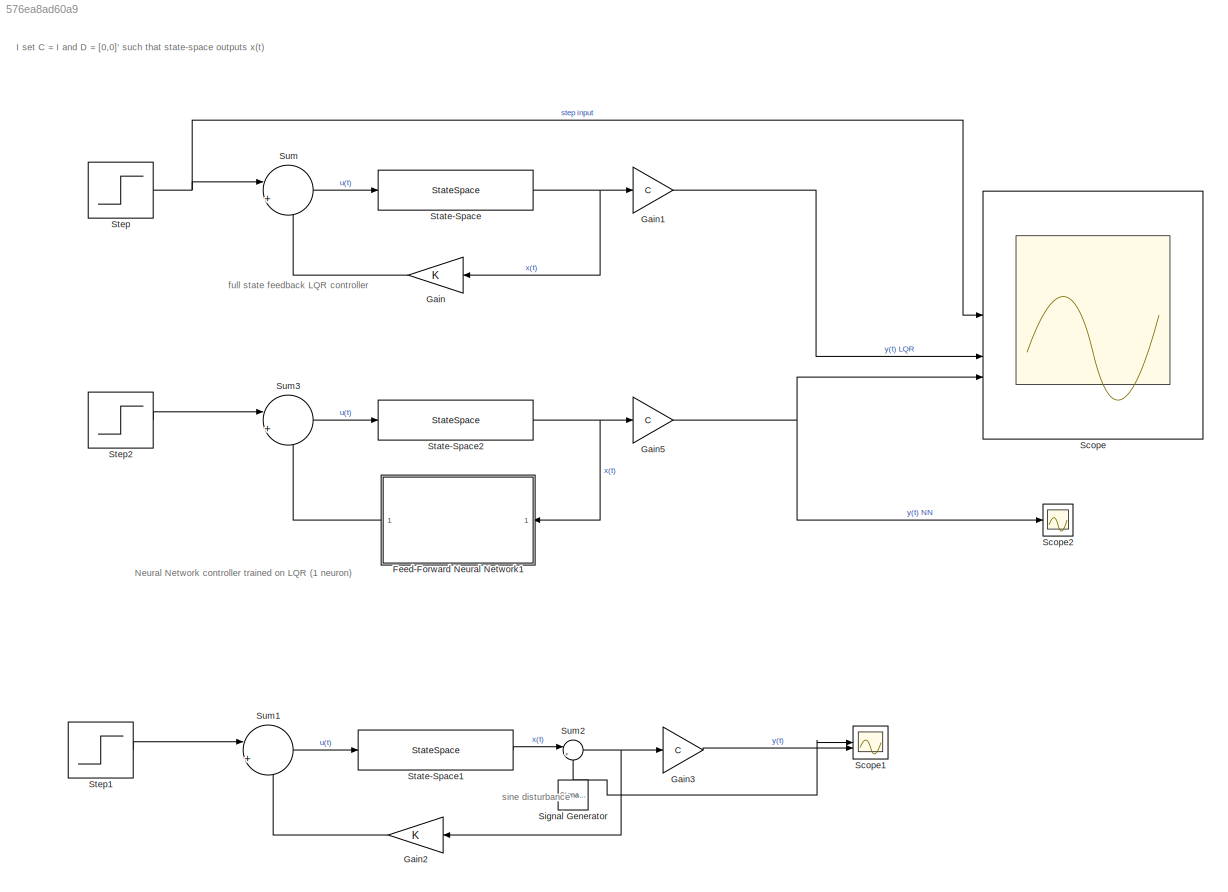
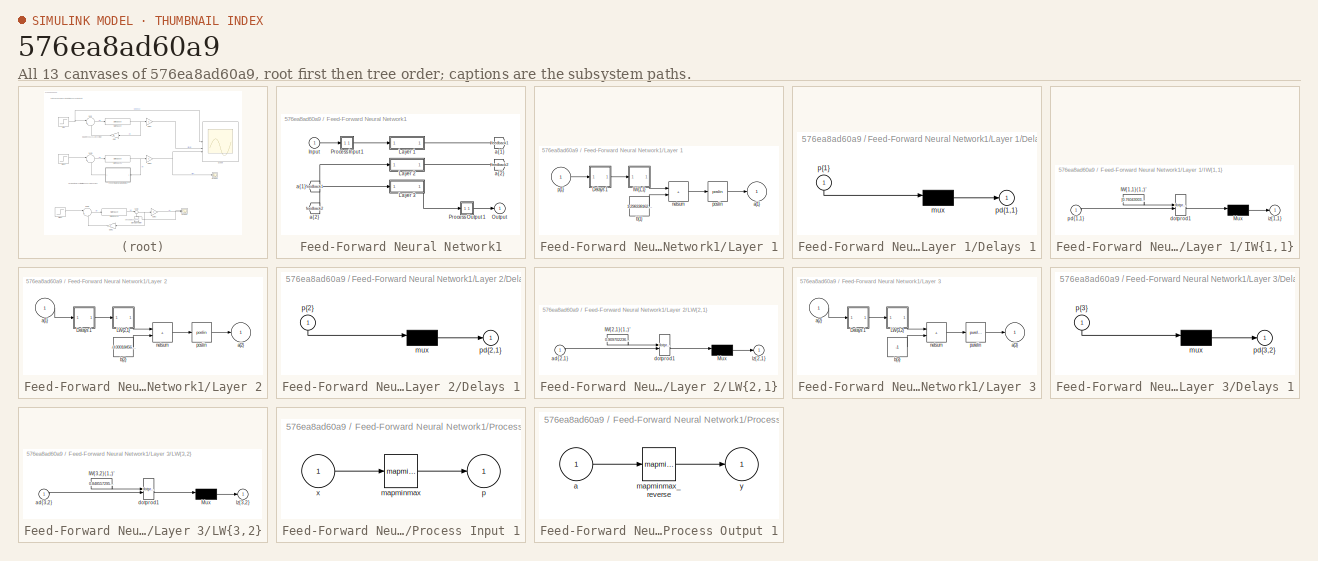
[diagram: thumbnail index - all 13 canvases of the model, root first then tree order]
MODEL slx_576ea8ad60a9
KIND model
CONFIG AbsTol = auto
CONFIG EnableMultiTasking = off
CONFIG FixedStep = auto
CONFIG MaxStep = auto
CONFIG MinStep = auto
CONFIG RelTol = 1e-3
CONFIG SampleTimeConstraint = Unconstrained
CONFIG SolverName = VariableStepAuto
CONFIG StartTime = 0.0
CONFIG StopTime = 10
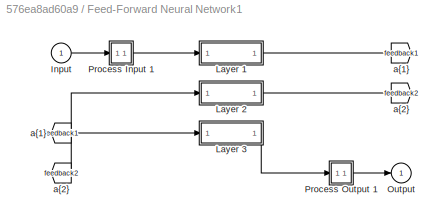
BLOCK [SubSystem] Feed-Forward Neural Network1
  NameLocation = top
BLOCK [From] Feed-Forward Neural Network1/ a{1} 
  GotoTag = feedback1
BLOCK [From] Feed-Forward Neural Network1/ a{2} 
  GotoTag = feedback2
BLOCK [Inport] Feed-Forward Neural Network1/Input
  PortDimensions = 2
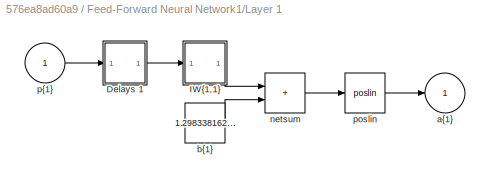
BLOCK [SubSystem] Feed-Forward Neural Network1/Layer 1
BLOCK [SubSystem] Feed-Forward Neural Network1/Layer 1/Delays 1
BLOCK [Mux] Feed-Forward Neural Network1/Layer 1/Delays 1/mux
  Inputs = 1
BLOCK [Outport] Feed-Forward Neural Network1/Layer 1/Delays 1/pd{1,1}
BLOCK [Inport] Feed-Forward Neural Network1/Layer 1/Delays 1/p{1}
  NameLocation = left
  PortDimensions = 2
BLOCK [SubSystem] Feed-Forward Neural Network1/Layer 1/IW{1,1}
BLOCK [Constant] Feed-Forward Neural Network1/Layer 1/IW{1,1}/IW{1,1}(1,:)'
  Value = [0.7604300398855599052438947182963602244853973388671875;0.537705237821036075018810151959769427776336669921875]
BLOCK [Mux] Feed-Forward Neural Network1/Layer 1/IW{1,1}/Mux
  Inputs = 1
BLOCK [Reference] Feed-Forward Neural Network1/Layer 1/IW{1,1}/dotprod1  REF=neural/Weight Functions/dotprod
  SourceBlock = neural/Weight Functions/dotprod
  SourceType = DOTPROD
BLOCK [Outport] Feed-Forward Neural Network1/Layer 1/IW{1,1}/iz{1,1}
BLOCK [Inport] Feed-Forward Neural Network1/Layer 1/IW{1,1}/pd{1,1}
  PortDimensions = 2
BLOCK [Outport] Feed-Forward Neural Network1/Layer 1/a{1}
  InitialOutput = 0
BLOCK [Constant] Feed-Forward Neural Network1/Layer 1/b{1}
  Value = 1.29833816245283717449865434900857508182525634765625
BLOCK [Sum] Feed-Forward Neural Network1/Layer 1/netsum
  IconShape = rectangular
  InputSameDT = on
  Inputs = 2
  OutDataTypeStr = Inherit: Same as first input
  SaturateOnIntegerOverflow = on
BLOCK [Reference] Feed-Forward Neural Network1/Layer 1/poslin  REF=neural/Transfer Functions/poslin
  SourceBlock = neural/Transfer Functions/poslin
  SourceType = POSLIN
BLOCK [Inport] Feed-Forward Neural Network1/Layer 1/p{1}
  PortDimensions = 2
BLOCK [SubSystem] Feed-Forward Neural Network1/Layer 2
BLOCK [SubSystem] Feed-Forward Neural Network1/Layer 2/Delays 1
BLOCK [Mux] Feed-Forward Neural Network1/Layer 2/Delays 1/mux
  Inputs = 1
BLOCK [Outport] Feed-Forward Neural Network1/Layer 2/Delays 1/pd{2,1}
BLOCK [Inport] Feed-Forward Neural Network1/Layer 2/Delays 1/p{2}
  NameLocation = left
  PortDimensions = 1
BLOCK [SubSystem] Feed-Forward Neural Network1/Layer 2/LW{2,1}
BLOCK [Constant] Feed-Forward Neural Network1/Layer 2/LW{2,1}/IW{2,1}(1,:)'
  Value = 0.909702236076758818938969852752052247524261474609375
BLOCK [Mux] Feed-Forward Neural Network1/Layer 2/LW{2,1}/Mux
  Inputs = 1
BLOCK [Inport] Feed-Forward Neural Network1/Layer 2/LW{2,1}/ad{2,1}
  PortDimensions = 1
BLOCK [Reference] Feed-Forward Neural Network1/Layer 2/LW{2,1}/dotprod1  REF=neural/Weight Functions/dotprod
  SourceBlock = neural/Weight Functions/dotprod
  SourceType = DOTPROD
BLOCK [Outport] Feed-Forward Neural Network1/Layer 2/LW{2,1}/lz{2,1}
BLOCK [Inport] Feed-Forward Neural Network1/Layer 2/a{1} 
  PortDimensions = 1
BLOCK [Outport] Feed-Forward Neural Network1/Layer 2/a{2}
  InitialOutput = 0
BLOCK [Constant] Feed-Forward Neural Network1/Layer 2/b{2}
  Value = -0.00018456470732128269786852248213193661285913549363613128662109375
BLOCK [Sum] Feed-Forward Neural Network1/Layer 2/netsum
  IconShape = rectangular
  InputSameDT = on
  Inputs = 2
  OutDataTypeStr = Inherit: Same as first input
  SaturateOnIntegerOverflow = on
BLOCK [Reference] Feed-Forward Neural Network1/Layer 2/poslin  REF=neural/Transfer Functions/poslin
  SourceBlock = neural/Transfer Functions/poslin
  SourceType = POSLIN
BLOCK [SubSystem] Feed-Forward Neural Network1/Layer 3
BLOCK [SubSystem] Feed-Forward Neural Network1/Layer 3/Delays 1
BLOCK [Mux] Feed-Forward Neural Network1/Layer 3/Delays 1/mux
  Inputs = 1
BLOCK [Outport] Feed-Forward Neural Network1/Layer 3/Delays 1/pd{3,2}
BLOCK [Inport] Feed-Forward Neural Network1/Layer 3/Delays 1/p{3}
  NameLocation = left
  PortDimensions = 1
BLOCK [SubSystem] Feed-Forward Neural Network1/Layer 3/LW{3,2}
BLOCK [Constant] Feed-Forward Neural Network1/Layer 3/LW{3,2}/IW{3,2}(1,:)'
  Value = 0.8485572951164546129376731187221594154834747314453125
BLOCK [Mux] Feed-Forward Neural Network1/Layer 3/LW{3,2}/Mux
  Inputs = 1
BLOCK [Inport] Feed-Forward Neural Network1/Layer 3/LW{3,2}/ad{3,2}
  PortDimensions = 1
BLOCK [Reference] Feed-Forward Neural Network1/Layer 3/LW{3,2}/dotprod1  REF=neural/Weight Functions/dotprod
  SourceBlock = neural/Weight Functions/dotprod
  SourceType = DOTPROD
BLOCK [Outport] Feed-Forward Neural Network1/Layer 3/LW{3,2}/lz{3,2}
BLOCK [Inport] Feed-Forward Neural Network1/Layer 3/a{2} 
  PortDimensions = 1
BLOCK [Outport] Feed-Forward Neural Network1/Layer 3/a{3}
  InitialOutput = 0
BLOCK [Constant] Feed-Forward Neural Network1/Layer 3/b{3}
  Value = -1
BLOCK [Sum] Feed-Forward Neural Network1/Layer 3/netsum
  IconShape = rectangular
  InputSameDT = on
  Inputs = 2
  OutDataTypeStr = Inherit: Same as first input
  SaturateOnIntegerOverflow = on
BLOCK [Reference] Feed-Forward Neural Network1/Layer 3/purelin  REF=neural/Transfer Functions/purelin
  SourceBlock = neural/Transfer Functions/purelin
  SourceType = PURELIN
BLOCK [Outport] Feed-Forward Neural Network1/Output
  InitialOutput = 0
BLOCK [SubSystem] Feed-Forward Neural Network1/Process Input 1
BLOCK [Reference] Feed-Forward Neural Network1/Process Input 1/mapminmax  REF=neural/Processing Functions/mapminmax
  SourceBlock = neural/Processing Functions/mapminmax
  SourceType = MAPMINMAX Preprocess
BLOCK [Outport] Feed-Forward Neural Network1/Process Input 1/p
  PortDimensions = 2
BLOCK [Inport] Feed-Forward Neural Network1/Process Input 1/x
  PortDimensions = 2
BLOCK [SubSystem] Feed-Forward Neural Network1/Process Output 1
BLOCK [Inport] Feed-Forward Neural Network1/Process Output 1/a
  PortDimensions = 1
BLOCK [Reference] Feed-Forward Neural Network1/Process Output 1/mapminmax_reverse  REF=neural/Processing Functions/mapminmax_reverse
  SourceBlock = neural/Processing Functions/mapminmax_reverse
  SourceType = MAPMINMAX Reverse Process
BLOCK [Outport] Feed-Forward Neural Network1/Process Output 1/y
  PortDimensions = 1
BLOCK [Goto] Feed-Forward Neural Network1/a{1}
  GotoTag = feedback1
BLOCK [Goto] Feed-Forward Neural Network1/a{2}
  GotoTag = feedback2
BLOCK [Gain] Gain
  Gain = K
  Multiplication = Matrix(K*u)
BLOCK [Gain] Gain1
  Gain = C
  Multiplication = Matrix(K*u) (u vector)
BLOCK [Gain] Gain2
  Gain = K
  Multiplication = Matrix(K*u)
BLOCK [Gain] Gain3
  Gain = C
  Multiplication = Matrix(K*u) (u vector)
BLOCK [Gain] Gain5
  Gain = C
  Multiplication = Matrix(K*u) (u vector)
BLOCK [Scope] Scope
  Floating = off
  NumInputPorts = 3
  ScopeSpecificationString = Simulink.scopes.TimeScopeBlockCfg('CurrentConfiguration', extmgr.ConfigurationSet(extmgr.Configuration('Core','General UI',true),extmgr.Configuration('Core','Source UI',true),extmgr.Configuration('Sources','WiredSimulink',true,'DataLoggingVariableName','ScopeData1'),extmgr.Configuration('Visuals','Time Domain',true,'SerializedDisplays',{struct('MinYLimReal','-125000.00000','MaxYLimReal','1125000.0...<+1595ch>
BLOCK [Scope] Scope1
  Floating = off
  NumInputPorts = 2
  ScopeSpecificationString = Simulink.scopes.TimeScopeBlockCfg('CurrentConfiguration', extmgr.ConfigurationSet(extmgr.Configuration('Core','General UI',true),extmgr.Configuration('Core','Source UI',true),extmgr.Configuration('Sources','WiredSimulink',true,'DataLoggingVariableName','ScopeData1'),extmgr.Configuration('Visuals','Time Domain',true,'SerializedDisplays',{struct('MinYLimReal','-0.40317','MaxYLimReal','0.40372','YLab...<+1409ch>
BLOCK [Scope] Scope2
  Floating = off
  NumInputPorts = 1
  ScopeSpecificationString = Simulink.scopes.TimeScopeBlockCfg('CurrentConfiguration', extmgr.ConfigurationSet(extmgr.Configuration('Core','General UI',true),extmgr.Configuration('Core','Source UI',true),extmgr.Configuration('Sources','WiredSimulink',true,'DataLoggingVariableName','ScopeData2'),extmgr.Configuration('Visuals','Time Domain',true,'SerializedDisplays',{struct('MinYLimReal','-0.04215','MaxYLimReal','0.37939','YLab...<+1390ch>
BLOCK [SignalGenerator] Signal Generator
  Amplitude = 0.2
  NameLocation = right
  Units = rad/sec
BLOCK [StateSpace] State-Space
  A = A
  B = B
  C = eye(2)
  D = [0;0]
  InitialCondition = 0
BLOCK [StateSpace] State-Space1
  A = A
  B = B
  C = eye(2)
  D = [0;0]
  InitialCondition = 0
BLOCK [StateSpace] State-Space2
  A = A
  B = B
  C = eye(2)
  D = [0;0]
  InitialCondition = 0
BLOCK [Step] Step
  After = 1e6
  SampleTime = 0
BLOCK [Step] Step1
  After = 0
  SampleTime = 0
BLOCK [Step] Step2
  After = 1e6
  SampleTime = 0
BLOCK [Sum] Sum
  Inputs = |+-
BLOCK [Sum] Sum1
  Inputs = |+-
BLOCK [Sum] Sum2
  Inputs = |++
BLOCK [Sum] Sum3
  Inputs = |+-
ANNOTATION (root): Neural Network controller trained on LQR (1 neuron)
ANNOTATION (root): I set C = I and D = [0,0]' such that state-space outputs x(t)
ANNOTATION (root): full state feedback LQR controller
ANNOTATION (root): sine disturbance
LINE Feed-Forward Neural Network1/ a{1} :1 -> Feed-Forward Neural Network1/Layer 2:1
LINE Feed-Forward Neural Network1/ a{2} :1 -> Feed-Forward Neural Network1/Layer 3:1
LINE Feed-Forward Neural Network1/Input:1 -> Feed-Forward Neural Network1/Process Input 1:1
LINE Feed-Forward Neural Network1/Layer 1/Delays 1/mux:1 -> Feed-Forward Neural Network1/Layer 1/Delays 1/pd{1,1}:1
LINE Feed-Forward Neural Network1/Layer 1/Delays 1/p{1}:1 -> Feed-Forward Neural Network1/Layer 1/Delays 1/mux:1
LINE Feed-Forward Neural Network1/Layer 1/Delays 1:1 -> Feed-Forward Neural Network1/Layer 1/IW{1,1}:1
LINE Feed-Forward Neural Network1/Layer 1/IW{1,1}/IW{1,1}(1,:)':1 -> Feed-Forward Neural Network1/Layer 1/IW{1,1}/dotprod1:1
LINE Feed-Forward Neural Network1/Layer 1/IW{1,1}/Mux:1 -> Feed-Forward Neural Network1/Layer 1/IW{1,1}/iz{1,1}:1
LINE Feed-Forward Neural Network1/Layer 1/IW{1,1}/dotprod1:1 -> Feed-Forward Neural Network1/Layer 1/IW{1,1}/Mux:1
LINE Feed-Forward Neural Network1/Layer 1/IW{1,1}/pd{1,1}:1 -> Feed-Forward Neural Network1/Layer 1/IW{1,1}/dotprod1:2
LINE Feed-Forward Neural Network1/Layer 1/IW{1,1}:1 -> Feed-Forward Neural Network1/Layer 1/netsum:1
LINE Feed-Forward Neural Network1/Layer 1/b{1}:1 -> Feed-Forward Neural Network1/Layer 1/netsum:2
LINE Feed-Forward Neural Network1/Layer 1/netsum:1 -> Feed-Forward Neural Network1/Layer 1/poslin:1
LINE Feed-Forward Neural Network1/Layer 1/poslin:1 -> Feed-Forward Neural Network1/Layer 1/a{1}:1
LINE Feed-Forward Neural Network1/Layer 1/p{1}:1 -> Feed-Forward Neural Network1/Layer 1/Delays 1:1
LINE Feed-Forward Neural Network1/Layer 1:1 -> Feed-Forward Neural Network1/a{1}:1
LINE Feed-Forward Neural Network1/Layer 2/Delays 1/mux:1 -> Feed-Forward Neural Network1/Layer 2/Delays 1/pd{2,1}:1
LINE Feed-Forward Neural Network1/Layer 2/Delays 1/p{2}:1 -> Feed-Forward Neural Network1/Layer 2/Delays 1/mux:1
LINE Feed-Forward Neural Network1/Layer 2/Delays 1:1 -> Feed-Forward Neural Network1/Layer 2/LW{2,1}:1
LINE Feed-Forward Neural Network1/Layer 2/LW{2,1}/IW{2,1}(1,:)':1 -> Feed-Forward Neural Network1/Layer 2/LW{2,1}/dotprod1:1
LINE Feed-Forward Neural Network1/Layer 2/LW{2,1}/Mux:1 -> Feed-Forward Neural Network1/Layer 2/LW{2,1}/lz{2,1}:1
LINE Feed-Forward Neural Network1/Layer 2/LW{2,1}/ad{2,1}:1 -> Feed-Forward Neural Network1/Layer 2/LW{2,1}/dotprod1:2
LINE Feed-Forward Neural Network1/Layer 2/LW{2,1}/dotprod1:1 -> Feed-Forward Neural Network1/Layer 2/LW{2,1}/Mux:1
LINE Feed-Forward Neural Network1/Layer 2/LW{2,1}:1 -> Feed-Forward Neural Network1/Layer 2/netsum:1
LINE Feed-Forward Neural Network1/Layer 2/a{1} :1 -> Feed-Forward Neural Network1/Layer 2/Delays 1:1
LINE Feed-Forward Neural Network1/Layer 2/b{2}:1 -> Feed-Forward Neural Network1/Layer 2/netsum:2
LINE Feed-Forward Neural Network1/Layer 2/netsum:1 -> Feed-Forward Neural Network1/Layer 2/poslin:1
LINE Feed-Forward Neural Network1/Layer 2/poslin:1 -> Feed-Forward Neural Network1/Layer 2/a{2}:1
LINE Feed-Forward Neural Network1/Layer 2:1 -> Feed-Forward Neural Network1/a{2}:1
LINE Feed-Forward Neural Network1/Layer 3/Delays 1/mux:1 -> Feed-Forward Neural Network1/Layer 3/Delays 1/pd{3,2}:1
LINE Feed-Forward Neural Network1/Layer 3/Delays 1/p{3}:1 -> Feed-Forward Neural Network1/Layer 3/Delays 1/mux:1
LINE Feed-Forward Neural Network1/Layer 3/Delays 1:1 -> Feed-Forward Neural Network1/Layer 3/LW{3,2}:1
LINE Feed-Forward Neural Network1/Layer 3/LW{3,2}/IW{3,2}(1,:)':1 -> Feed-Forward Neural Network1/Layer 3/LW{3,2}/dotprod1:1
LINE Feed-Forward Neural Network1/Layer 3/LW{3,2}/Mux:1 -> Feed-Forward Neural Network1/Layer 3/LW{3,2}/lz{3,2}:1
LINE Feed-Forward Neural Network1/Layer 3/LW{3,2}/ad{3,2}:1 -> Feed-Forward Neural Network1/Layer 3/LW{3,2}/dotprod1:2
LINE Feed-Forward Neural Network1/Layer 3/LW{3,2}/dotprod1:1 -> Feed-Forward Neural Network1/Layer 3/LW{3,2}/Mux:1
LINE Feed-Forward Neural Network1/Layer 3/LW{3,2}:1 -> Feed-Forward Neural Network1/Layer 3/netsum:1
LINE Feed-Forward Neural Network1/Layer 3/a{2} :1 -> Feed-Forward Neural Network1/Layer 3/Delays 1:1
LINE Feed-Forward Neural Network1/Layer 3/b{3}:1 -> Feed-Forward Neural Network1/Layer 3/netsum:2
LINE Feed-Forward Neural Network1/Layer 3/netsum:1 -> Feed-Forward Neural Network1/Layer 3/purelin:1
LINE Feed-Forward Neural Network1/Layer 3/purelin:1 -> Feed-Forward Neural Network1/Layer 3/a{3}:1
LINE Feed-Forward Neural Network1/Layer 3:1 -> Feed-Forward Neural Network1/Process Output 1:1
LINE Feed-Forward Neural Network1/Process Input 1/mapminmax:1 -> Feed-Forward Neural Network1/Process Input 1/p:1
LINE Feed-Forward Neural Network1/Process Input 1/x:1 -> Feed-Forward Neural Network1/Process Input 1/mapminmax:1
LINE Feed-Forward Neural Network1/Process Input 1:1 -> Feed-Forward Neural Network1/Layer 1:1
LINE Feed-Forward Neural Network1/Process Output 1/a:1 -> Feed-Forward Neural Network1/Process Output 1/mapminmax_reverse:1
LINE Feed-Forward Neural Network1/Process Output 1/mapminmax_reverse:1 -> Feed-Forward Neural Network1/Process Output 1/y:1
LINE Feed-Forward Neural Network1/Process Output 1:1 -> Feed-Forward Neural Network1/Output:1
LINE Feed-Forward Neural Network1:1 -> Sum3:2
LINE Gain1:1 -> Scope:2
LINE Gain2:1 -> Sum1:2
LINE Gain3:1 -> Scope1:2
NET Gain5:1 -> Scope2:1, Scope:3
LINE Gain:1 -> Sum:2
NET Signal Generator:1 -> Scope1:1, Sum2:2
LINE State-Space1:1 -> Sum2:1
NET State-Space2:1 -> Feed-Forward Neural Network1:1, Gain5:1
NET State-Space:1 -> Gain1:1, Gain:1
LINE Step1:1 -> Sum1:1
LINE Step2:1 -> Sum3:1
NET Step:1 -> Scope:1, Sum:1
LINE Sum1:1 -> State-Space1:1
NET Sum2:1 -> Gain2:1, Gain3:1
LINE Sum3:1 -> State-Space2:1
LINE Sum:1 -> State-Space:1
note: NET lines group one-source signal fan-out (src -> all destinations, sorted); 1:1 wires keep LINE
